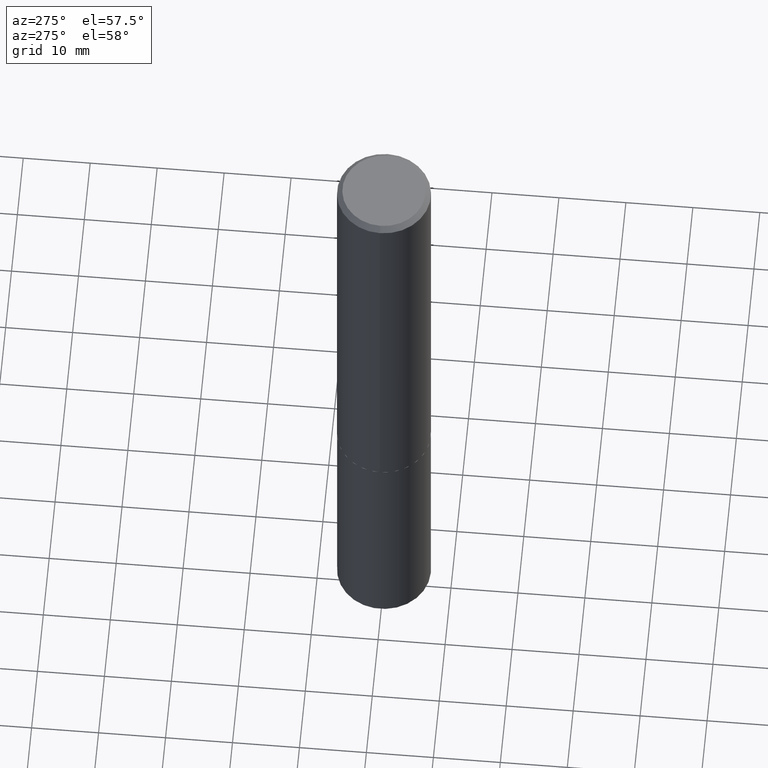
[diagram: clean part render]
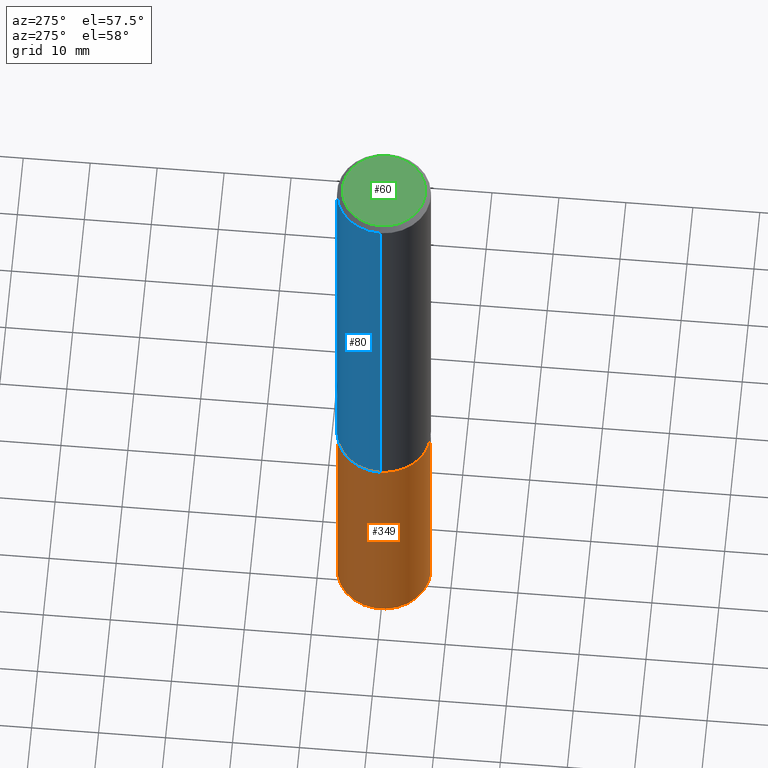
[diagram: same view with three faces highlighted in distinct colors, each labeled with its STEP entity id]
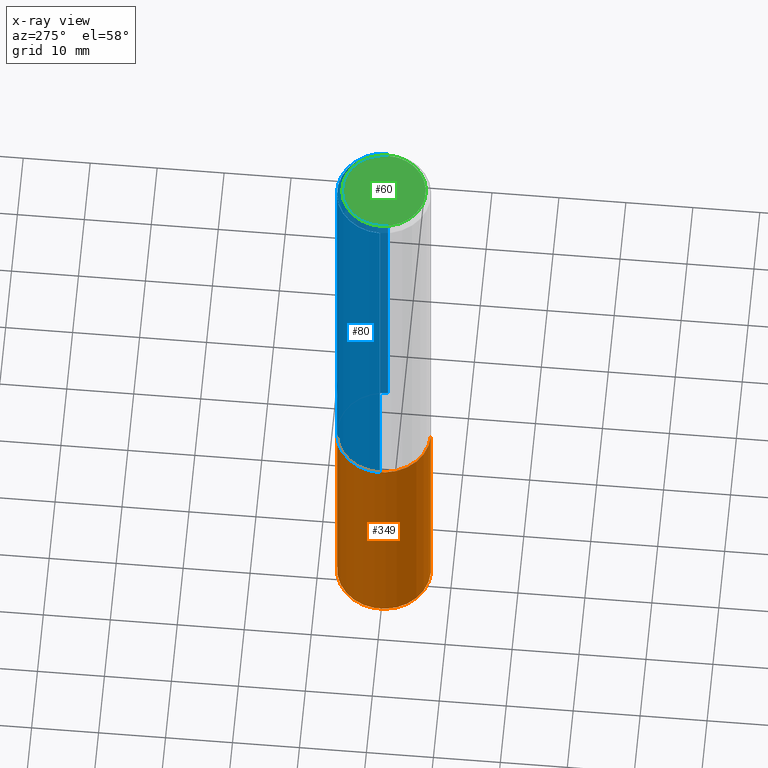
[diagram: x-ray of the same camera — body ghosted, the three highlighted faces saturated]
A machine part, auxiliary view with three faces highlighted in distinct colors.
The next image is the same camera in x-ray (body ghosted, the three faces saturated) — at least one of them is partly hidden behind the body in this view.
Their STEP definitions:

[orange] entity #349 — the highlighted cylindrical surface (partial cylindrical patch) has radius 7.0002 mm, axis along (-0, 0, 1).
#2 = AXIS2_PLACEMENT_3D ( 'NONE', #159, #371, #249 ) ;
#10 = ORIENTED_EDGE ( 'NONE', *, *, #257, .T. ) ;
#11 = CARTESIAN_POINT ( 'NONE',  ( 1.958255779754937169E-15, 0.2755999999999907968, -2.637800000000000811 ) ) ;
#19 = CYLINDRICAL_SURFACE ( 'NONE', #246, 0.2756000000000000116 ) ;
#26 = VERTEX_POINT ( 'NONE', #244 ) ;
#38 = ORIENTED_EDGE ( 'NONE', *, *, #171, .T. ) ;
#46 = CARTESIAN_POINT ( 'NONE',  ( 6.450657616955153231E-29, -9.209829475600448681E-15, -2.637799999999999923 ) ) ;
#68 = CARTESIAN_POINT ( 'NONE',  ( 1.958255779754900487E-15, 0.2755999999999907968, -2.637800000000000811 ) ) ;
#73 = EDGE_CURVE ( 'NONE', #254, #126, #225, .T. ) ;
#77 = FACE_OUTER_BOUND ( 'NONE', #219, .T. ) ;
#79 = CARTESIAN_POINT ( 'NONE',  ( 6.450657616955153231E-29, -9.209829475600448681E-15, -2.637799999999999923 ) ) ;
#82 = CARTESIAN_POINT ( 'NONE',  ( -1.924504513970270662E-15, -0.2756000000000092265, -2.637799999999999034 ) ) ;
#103 = DIRECTION ( 'NONE',  ( -6.982962677686265922E-15, -1.000000000000000000, 3.964946289788480896E-15 ) ) ;
#120 = CARTESIAN_POINT ( 'NONE',  ( -1.924504513970270662E-15, -0.2756000000000092265, -2.637799999999999034 ) ) ;
#126 = VERTEX_POINT ( 'NONE', #11 ) ;
#136 = CARTESIAN_POINT ( 'NONE',  ( 1.958255779754937169E-15, 0.2755999999999856342, -4.125703653784954739 ) ) ;
#159 = CARTESIAN_POINT ( 'NONE',  ( 1.008722885380268887E-28, -1.440775408616014137E-14, -4.125703653784953850 ) ) ;
#167 = AXIS2_PLACEMENT_3D ( 'NONE', #79, #231, #103 ) ;
#171 = EDGE_CURVE ( 'NONE', #26, #325, #284, .T. ) ;
#180 = CIRCLE ( 'NONE', #167, 0.2756000000000000116 ) ;
#182 = ORIENTED_EDGE ( 'NONE', *, *, #73, .F. ) ;
#194 = EDGE_CURVE ( 'NONE', #126, #325, #180, .T. ) ;
#219 = EDGE_LOOP ( 'NONE', ( #182, #10, #38, #332 ) ) ;
#225 = LINE ( 'NONE', #68, #338 ) ;
#231 = DIRECTION ( 'NONE',  ( -2.444090534757923530E-29, 3.493455101973252593E-15, 1.000000000000000000 ) ) ;
#244 = CARTESIAN_POINT ( 'NONE',  ( -1.924504513970233980E-15, -0.2756000000000144445, -4.125703653784952074 ) ) ;
#246 = AXIS2_PLACEMENT_3D ( 'NONE', #46, #312, #286 ) ;
#249 = DIRECTION ( 'NONE',  ( -6.982962677686265922E-15, -1.000000000000000000, 3.964946289788480896E-15 ) ) ;
#254 = VERTEX_POINT ( 'NONE', #136 ) ;
#257 = EDGE_CURVE ( 'NONE', #254, #26, #377, .T. ) ;
#284 = LINE ( 'NONE', #82, #316 ) ;
#286 = DIRECTION ( 'NONE',  ( -6.982962677686265922E-15, -1.000000000000000000, 3.964946289788480896E-15 ) ) ;
#307 = DIRECTION ( 'NONE',  ( -2.444090534757923810E-29, 3.493455101973252593E-15, 1.000000000000000000 ) ) ;
#312 = DIRECTION ( 'NONE',  ( -2.444090534757923530E-29, 3.493455101973252593E-15, 1.000000000000000000 ) ) ;
#316 = VECTOR ( 'NONE', #350, 39.37007874015748143 ) ;
#325 = VERTEX_POINT ( 'NONE', #120 ) ;
#332 = ORIENTED_EDGE ( 'NONE', *, *, #194, .F. ) ;
#338 = VECTOR ( 'NONE', #307, 39.37007874015748143 ) ;
#349 = ADVANCED_FACE ( 'NONE', ( #77 ), #19, .T. ) ;
#350 = DIRECTION ( 'NONE',  ( -2.444090534757923810E-29, 3.493455101973252593E-15, 1.000000000000000000 ) ) ;
#371 = DIRECTION ( 'NONE',  ( -2.444090534757923530E-29, 3.493455101973252593E-15, 1.000000000000000000 ) ) ;
#377 = CIRCLE ( 'NONE', #2, 0.2756000000000000116 ) ;

[blue] entity #80 — the highlighted cylindrical surface (partial cylindrical patch) has radius 7.0002 mm, axis along (-0, 0, 1).
#3 = CARTESIAN_POINT ( 'NONE',  ( 0.2756000000000000116, -2.033613305809184449E-15, -0.03125000000000021511 ) ) ;
#5 = FACE_OUTER_BOUND ( 'NONE', #215, .T. ) ;
#34 = AXIS2_PLACEMENT_3D ( 'NONE', #192, #70, #306 ) ;
#39 = CARTESIAN_POINT ( 'NONE',  ( 0.2756000000000001782, -1.924504513970336532E-15, 1.343874319409360828E-29 ) ) ;
#58 = CIRCLE ( 'NONE', #34, 0.2756000000000003447 ) ;
#61 = VERTEX_POINT ( 'NONE', #3 ) ;
#70 = DIRECTION ( 'NONE',  ( -2.445468806185136597E-29, 3.491481338843145583E-15, 1.000000000000000000 ) ) ;
#80 = ADVANCED_FACE ( 'NONE', ( #5 ), #344, .T. ) ;
#85 = CARTESIAN_POINT ( 'NONE',  ( 0.2756000000000003447, -1.113258824890136292E-14, -2.637299999999999756 ) ) ;
#95 = VECTOR ( 'NONE', #220, 39.37007874015748143 ) ;
#105 = ORIENTED_EDGE ( 'NONE', *, *, #144, .T. ) ;
#144 = EDGE_CURVE ( 'NONE', #341, #303, #58, .T. ) ;
#146 = VECTOR ( 'NONE', #343, 39.37007874015748143 ) ;
#155 = CARTESIAN_POINT ( 'NONE',  ( -0.2756000000000001782, 1.958255779754837378E-15, -1.355658510874252848E-29 ) ) ;
#163 = LINE ( 'NONE', #155, #146 ) ;
#192 = CARTESIAN_POINT ( 'NONE',  ( 6.449434882552060429E-29, -9.208083734931026389E-15, -2.637299999999999756 ) ) ;
#196 = DIRECTION ( 'NONE',  ( -2.445468806185136597E-29, 3.491481338843145583E-15, 1.000000000000000000 ) ) ;
#204 = CARTESIAN_POINT ( 'NONE',  ( -0.2756000000000003447, -7.249827955176188222E-15, -2.637299999999999756 ) ) ;
#205 = CARTESIAN_POINT ( 'NONE',  ( 7.642090019328604414E-31, -1.091087918388490513E-16, -0.03125000000000021511 ) ) ;
#206 = CIRCLE ( 'NONE', #255, 0.2756000000000000116 ) ;
#207 = EDGE_CURVE ( 'NONE', #341, #61, #305, .T. ) ;
#215 = EDGE_LOOP ( 'NONE', ( #105, #243, #373, #240 ) ) ;
#220 = DIRECTION ( 'NONE',  ( -2.445468806185136877E-29, 3.491481338843145188E-15, 1.000000000000000000 ) ) ;
#232 = EDGE_CURVE ( 'NONE', #303, #258, #163, .T. ) ;
#240 = ORIENTED_EDGE ( 'NONE', *, *, #207, .F. ) ;
#243 = ORIENTED_EDGE ( 'NONE', *, *, #232, .T. ) ;
#253 = DIRECTION ( 'NONE',  ( 1.000000000000000000, -6.982962677686267499E-15, 4.876176775795935793E-29 ) ) ;
#255 = AXIS2_PLACEMENT_3D ( 'NONE', #205, #283, #262 ) ;
#258 = VERTEX_POINT ( 'NONE', #368 ) ;
#262 = DIRECTION ( 'NONE',  ( 1.000000000000000000, -6.982962677686267499E-15, 0.000000000000000000 ) ) ;
#283 = DIRECTION ( 'NONE',  ( -2.445468806185136597E-29, 3.491481338843145583E-15, 1.000000000000000000 ) ) ;
#285 = AXIS2_PLACEMENT_3D ( 'NONE', #369, #196, #253 ) ;
#303 = VERTEX_POINT ( 'NONE', #204 ) ;
#305 = LINE ( 'NONE', #39, #95 ) ;
#306 = DIRECTION ( 'NONE',  ( 1.000000000000000000, -6.982962677686264344E-15, 0.000000000000000000 ) ) ;
#341 = VERTEX_POINT ( 'NONE', #85 ) ;
#343 = DIRECTION ( 'NONE',  ( -2.445468806185136877E-29, 3.491481338843145188E-15, 1.000000000000000000 ) ) ;
#344 = CYLINDRICAL_SURFACE ( 'NONE', #285, 0.2756000000000001782 ) ;
#356 = EDGE_CURVE ( 'NONE', #61, #258, #206, .T. ) ;
#368 = CARTESIAN_POINT ( 'NONE',  ( -0.2756000000000000116, -2.700340483630098789E-15, -0.03125000000000021511 ) ) ;
#369 = CARTESIAN_POINT ( 'NONE',  ( 0.000000000000000000, 0.000000000000000000, 0.000000000000000000 ) ) ;
#373 = ORIENTED_EDGE ( 'NONE', *, *, #356, .F. ) ;

[green] entity #60 — the highlighted planar face has unit normal (0, -0, -1).
#7 = DIRECTION ( 'NONE',  ( -2.445468806185136597E-29, 3.491481338843145583E-15, 1.000000000000000000 ) ) ;
#14 = ORIENTED_EDGE ( 'NONE', *, *, #129, .T. ) ;
#30 = EDGE_LOOP ( 'NONE', ( #14, #237 ) ) ;
#36 = VERTEX_POINT ( 'NONE', #302 ) ;
#44 = CARTESIAN_POINT ( 'NONE',  ( -5.188552583287908695E-46, 7.407877980016506241E-32, 2.121700579522789356E-17 ) ) ;
#60 = ADVANCED_FACE ( 'NONE', ( #170 ), #276, .F. ) ;
#65 = CARTESIAN_POINT ( 'NONE',  ( -5.188552583287908695E-46, 7.407877980016506241E-32, 2.121700579522789356E-17 ) ) ;
#104 = CIRCLE ( 'NONE', #118, 0.2443500000000000116 ) ;
#110 = DIRECTION ( 'NONE',  ( -2.445468806185136597E-29, 3.491481338843145583E-15, 1.000000000000000000 ) ) ;
#118 = AXIS2_PLACEMENT_3D ( 'NONE', #44, #110, #313 ) ;
#129 = EDGE_CURVE ( 'NONE', #36, #288, #331, .T. ) ;
#131 = DIRECTION ( 'NONE',  ( 1.000000000000000000, -6.982962677686266711E-15, 4.876506540096803620E-29 ) ) ;
#170 = FACE_OUTER_BOUND ( 'NONE', #30, .T. ) ;
#200 = DIRECTION ( 'NONE',  ( -1.000000000000000000, 6.982962677686265922E-15, -4.876176775795935793E-29 ) ) ;
#223 = AXIS2_PLACEMENT_3D ( 'NONE', #277, #340, #200 ) ;
#237 = ORIENTED_EDGE ( 'NONE', *, *, #319, .T. ) ;
#276 = PLANE ( 'NONE',  #223 ) ;
#277 = CARTESIAN_POINT ( 'NONE',  ( -2.594276291643954347E-46, 3.703938990008253121E-32, 1.060850289761394678E-17 ) ) ;
#288 = VERTEX_POINT ( 'NONE', #318 ) ;
#302 = CARTESIAN_POINT ( 'NONE',  ( -0.2443500000000000116, 1.760841326212062881E-15, 2.121700579521577098E-17 ) ) ;
#313 = DIRECTION ( 'NONE',  ( 1.000000000000000000, -6.982962677686266711E-15, 4.876506540096803620E-29 ) ) ;
#318 = CARTESIAN_POINT ( 'NONE',  ( 0.2443500000000000116, -1.838112362890078477E-15, 2.121700579524028730E-17 ) ) ;
#319 = EDGE_CURVE ( 'NONE', #288, #36, #104, .T. ) ;
#331 = CIRCLE ( 'NONE', #346, 0.2443500000000000116 ) ;
#340 = DIRECTION ( 'NONE',  ( 2.438088387897960049E-29, -3.491481338843145188E-15, -1.000000000000000000 ) ) ;
#346 = AXIS2_PLACEMENT_3D ( 'NONE', #65, #7, #131 ) ;